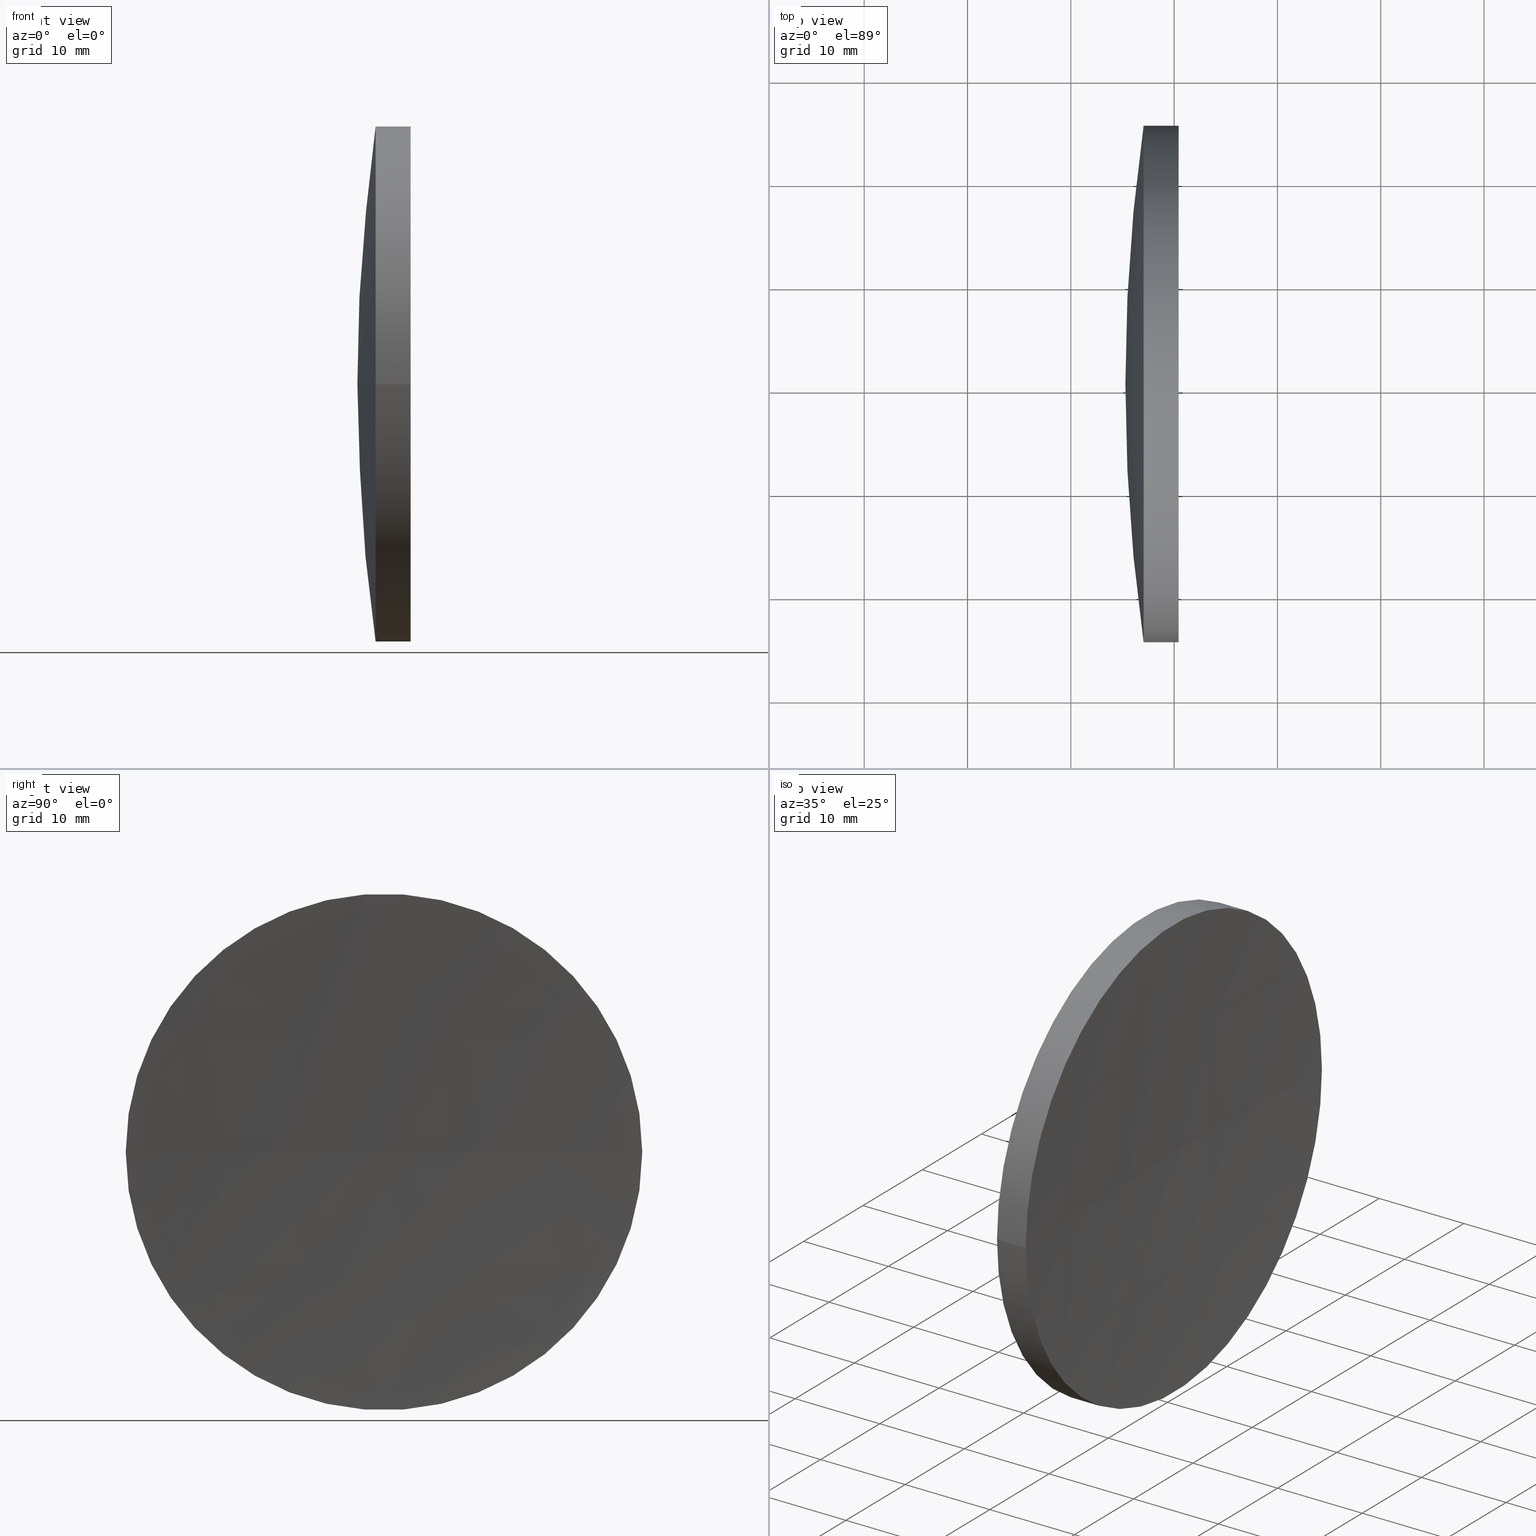
[diagram: canonical four-view strip — front | top / right | iso, engineering-drawing reading convention]
A machine part, canonical four-view strip (front | top / right | iso — engineering-drawing reading convention). The complete STEP part file that produces these views, byte-faithful:
ISO-10303-21;
HEADER;
FILE_DESCRIPTION (( 'STEP AP214' ),
    '1' );
FILE_NAME ('150023.STEP',
    '2019-07-05T02:02:17',
    ( '' ),
    ( '' ),
    'SwSTEP 2.0',
    'SolidWorks 2016',
    '' );
FILE_SCHEMA (( 'AUTOMOTIVE_DESIGN' ));
ENDSEC;

DATA;
#1 = SPHERICAL_SURFACE ( 'NONE', #82, 178.0000000000000300 ) ;
#2 = CARTESIAN_POINT ( 'NONE',  ( 727.7821311214902400, 130.4336809418802000, 0.0000000000000000000 ) ) ;
#3 = DIRECTION ( 'NONE',  ( 1.110223024625155600E-015, -1.000000000000000000, 0.0000000000000000000 ) ) ;
#4 = AXIS2_PLACEMENT_3D ( 'NONE', #124, #125, #21 ) ;
#5 = CARTESIAN_POINT ( 'NONE',  ( 727.7821311214902400, 130.4336809418802000, 0.0000000000000000000 ) ) ;
#6 =( NAMED_UNIT ( * ) PLANE_ANGLE_UNIT ( ) SI_UNIT ( $, .RADIAN. ) );
#7 = CIRCLE ( 'NONE', #33, 478.0000000000001100 ) ;
#8 = DIRECTION ( 'NONE',  ( 0.0000000000000000000, 0.0000000000000000000, 1.000000000000000000 ) ) ;
#9 = DIRECTION ( 'NONE',  ( 1.000000000000000000, 0.0000000000000000000, 0.0000000000000000000 ) ) ;
#10 = CIRCLE ( 'NONE', #72, 25.00000000000006400 ) ;
#11 =( GEOMETRIC_REPRESENTATION_CONTEXT ( 3 ) GLOBAL_UNCERTAINTY_ASSIGNED_CONTEXT ( ( #80 ) ) GLOBAL_UNIT_ASSIGNED_CONTEXT ( ( #134, #6, #22 ) ) REPRESENTATION_CONTEXT ( 'NONE', 'WORKASPACE' ) );
#12 = PRODUCT_RELATED_PRODUCT_CATEGORY ( 'part', '', ( #145 ) ) ;
#13 = EDGE_CURVE ( 'NONE', #27, #177, #44, .T. ) ;
#14 = PRESENTATION_LAYER_ASSIGNMENT (  '', '', ( #147 ) ) ;
#15 = EDGE_CURVE ( 'NONE', #16, #27, #81, .T. ) ;
#16 = VERTEX_POINT ( 'NONE', #102 ) ;
#17 = ADVANCED_BREP_SHAPE_REPRESENTATION ( '150023', ( #68, #168 ), #11 ) ;
#18 = EDGE_CURVE ( 'NONE', #79, #170, #30, .T. ) ;
#19 = DIRECTION ( 'NONE',  ( 1.000000000000000000, 0.0000000000000000000, 0.0000000000000000000 ) ) ;
#20 = EDGE_LOOP ( 'NONE', ( #69, #190, #25, #24 ) ) ;
#21 = DIRECTION ( 'NONE',  ( 0.0000000000000000000, 1.000000000000000000, 1.224646799147353000E-016 ) ) ;
#22 =( NAMED_UNIT ( * ) SI_UNIT ( $, .STERADIAN. ) SOLID_ANGLE_UNIT ( ) );
#23 = CARTESIAN_POINT ( 'NONE',  ( 423.2821311214902400, 130.4336809418806500, 0.0000000000000000000 ) ) ;
#24 = ORIENTED_EDGE ( 'NONE', *, *, #89, .F. ) ;
#25 = ORIENTED_EDGE ( 'NONE', *, *, #76, .T. ) ;
#26 =( GEOMETRIC_REPRESENTATION_CONTEXT ( 3 ) GLOBAL_UNCERTAINTY_ASSIGNED_CONTEXT ( ( #38 ) ) GLOBAL_UNIT_ASSIGNED_CONTEXT ( ( #36, #74, #91 ) ) REPRESENTATION_CONTEXT ( 'NONE', 'WORKASPACE' ) );
#27 = VERTEX_POINT ( 'NONE', #28 ) ;
#28 = CARTESIAN_POINT ( 'NONE',  ( 247.0464934087960100, 155.4336809418806200, 3.061616997868381100E-015 ) ) ;
#29 = DIRECTION ( 'NONE',  ( 1.110223024625158500E-015, -1.000000000000000000, 0.0000000000000000000 ) ) ;
#30 = CIRCLE ( 'NONE', #64, 478.0000000000000000 ) ;
#31 =( GEOMETRIC_REPRESENTATION_CONTEXT ( 3 ) GLOBAL_UNCERTAINTY_ASSIGNED_CONTEXT ( ( #192 ) ) GLOBAL_UNIT_ASSIGNED_CONTEXT ( ( #52, #152, #63 ) ) REPRESENTATION_CONTEXT ( 'NONE', 'WORKASPACE' ) );
#32 = CARTESIAN_POINT ( 'NONE',  ( 250.4363445055402600, 130.4336809418806500, 0.0000000000000000000 ) ) ;
#33 = AXIS2_PLACEMENT_3D ( 'NONE', #5, #93, #87 ) ;
#34 = CARTESIAN_POINT ( 'NONE',  ( 247.0464934087960400, 130.4336809418806500, 0.0000000000000000000 ) ) ;
#35 = FILL_AREA_STYLE ('',( #161 ) ) ;
#36 =( LENGTH_UNIT ( ) NAMED_UNIT ( * ) SI_UNIT ( .MILLI., .METRE. ) );
#37 = PRESENTATION_STYLE_ASSIGNMENT (( #94 ) ) ;
#38 = UNCERTAINTY_MEASURE_WITH_UNIT (LENGTH_MEASURE( 1.000000000000000100E-005 ), #36, 'distance_accuracy_value', 'NONE');
#39 = ORIENTED_EDGE ( 'NONE', *, *, #176, .T. ) ;
#40 = FACE_OUTER_BOUND ( 'NONE', #99, .T. ) ;
#41 = AXIS2_PLACEMENT_3D ( 'NONE', #181, #148, #46 ) ;
#42 = SPHERICAL_SURFACE ( 'NONE', #41, 478.0000000000001100 ) ;
#43 = EDGE_CURVE ( 'NONE', #79, #135, #10, .T. ) ;
#44 = CIRCLE ( 'NONE', #84, 178.0000000000000000 ) ;
#45 = EDGE_CURVE ( 'NONE', #135, #79, #116, .T. ) ;
#46 = DIRECTION ( 'NONE',  ( -6.967926932793868200E-016, 1.000000000000000000, 0.0000000000000000000 ) ) ;
#47 = CARTESIAN_POINT ( 'NONE',  ( 250.4363445055402100, 155.4336809418801400, 0.0000000000000000000 ) ) ;
#48 = SURFACE_STYLE_USAGE ( .BOTH. , #120 ) ;
#49 = DIRECTION ( 'NONE',  ( -1.000000000000000000, -6.937607244762875000E-016, -0.0000000000000000000 ) ) ;
#50 = ADVANCED_FACE ( 'NONE', ( #71 ), #1, .T. ) ;
#51 = LINE ( 'NONE', #61, #98 ) ;
#52 =( LENGTH_UNIT ( ) NAMED_UNIT ( * ) SI_UNIT ( .MILLI., .METRE. ) );
#53 = ORIENTED_EDGE ( 'NONE', *, *, #191, .T. ) ;
#54 = AXIS2_PLACEMENT_3D ( 'NONE', #101, #143, #29 ) ;
#55 = ORIENTED_EDGE ( 'NONE', *, *, #66, .T. ) ;
#56 = DIRECTION ( 'NONE',  ( -0.0000000000000000000, 0.0000000000000000000, 1.000000000000000000 ) ) ;
#57 = DIRECTION ( 'NONE',  ( 1.110223024625158500E-015, -1.000000000000000000, 0.0000000000000000000 ) ) ;
#58 = DIRECTION ( 'NONE',  ( 0.0000000000000000000, 0.0000000000000000000, -1.000000000000000000 ) ) ;
#59 = ORIENTED_EDGE ( 'NONE', *, *, #45, .F. ) ;
#60 = DIRECTION ( 'NONE',  ( -1.000000000000000000, -6.937607244762875000E-016, -0.0000000000000000000 ) ) ;
#61 = CARTESIAN_POINT ( 'NONE',  ( 231.8889825959263100, 155.4336809418806800, 3.061616997868385800E-015 ) ) ;
#62 = EDGE_LOOP ( 'NONE', ( #184, #67, #141 ) ) ;
#63 =( NAMED_UNIT ( * ) SI_UNIT ( $, .STERADIAN. ) SOLID_ANGLE_UNIT ( ) );
#64 = AXIS2_PLACEMENT_3D ( 'NONE', #2, #106, #118 ) ;
#65 = PRODUCT_DEFINITION_FORMATION_WITH_SPECIFIED_SOURCE ( '�κ�', '', #145, .NOT_KNOWN. ) ;
#66 = EDGE_CURVE ( 'NONE', #16, #177, #85, .T. ) ;
#67 = ORIENTED_EDGE ( 'NONE', *, *, #15, .T. ) ;
#68 = MANIFOLD_SOLID_BREP ( '��ת1', #146 ) ;
#69 = ORIENTED_EDGE ( 'NONE', *, *, #191, .F. ) ;
#70 = COLOUR_RGB ( '',1.000000000000000000, 1.000000000000000000, 1.000000000000000000 ) ;
#71 = FACE_OUTER_BOUND ( 'NONE', #115, .T. ) ;
#72 = AXIS2_PLACEMENT_3D ( 'NONE', #32, #133, #131 ) ;
#73 = CARTESIAN_POINT ( 'NONE',  ( 250.4363445055402100, 105.4336809418803700, -3.061616997868324700E-015 ) ) ;
#74 =( NAMED_UNIT ( * ) PLANE_ANGLE_UNIT ( ) SI_UNIT ( $, .RADIAN. ) );
#75 = DIRECTION ( 'NONE',  ( -6.967926932793868200E-016, 1.000000000000000000, 0.0000000000000000000 ) ) ;
#76 = EDGE_CURVE ( 'NONE', #135, #16, #111, .T. ) ;
#77 = DIRECTION ( 'NONE',  ( 0.0000000000000000000, -1.000000000000000000, 0.0000000000000000000 ) ) ;
#78 = APPLICATION_CONTEXT ( 'automotive_design' ) ;
#79 = VERTEX_POINT ( 'NONE', #47 ) ;
#80 = UNCERTAINTY_MEASURE_WITH_UNIT (LENGTH_MEASURE( 1.000000000000000100E-005 ), #134, 'distance_accuracy_value', 'NONE');
#81 = CIRCLE ( 'NONE', #54, 24.99999999999995400 ) ;
#82 = AXIS2_PLACEMENT_3D ( 'NONE', #100, #138, #183 ) ;
#83 = AXIS2_PLACEMENT_3D ( 'NONE', #158, #110, #3 ) ;
#84 = AXIS2_PLACEMENT_3D ( 'NONE', #173, #56, #19 ) ;
#85 = CIRCLE ( 'NONE', #4, 178.0000000000000300 ) ;
#86 = ADVANCED_FACE ( 'NONE', ( #104 ), #155, .F. ) ;
#87 = DIRECTION ( 'NONE',  ( 0.0000000000000000000, 1.000000000000000000, 1.224646799147353000E-016 ) ) ;
#88 = CIRCLE ( 'NONE', #159, 24.99999999999995400 ) ;
#89 = EDGE_CURVE ( 'NONE', #27, #16, #88, .T. ) ;
#90 = CARTESIAN_POINT ( 'NONE',  ( 0.0000000000000000000, 0.0000000000000000000, 0.0000000000000000000 ) ) ;
#91 =( NAMED_UNIT ( * ) SI_UNIT ( $, .STERADIAN. ) SOLID_ANGLE_UNIT ( ) );
#92 = ADVANCED_FACE ( 'NONE', ( #149 ), #182, .T. ) ;
#93 = DIRECTION ( 'NONE',  ( -8.496118506040342700E-032, 1.224646799147353200E-016, -1.000000000000000000 ) ) ;
#94 = SURFACE_STYLE_USAGE ( .BOTH. , #126 ) ;
#95 = ORIENTED_EDGE ( 'NONE', *, *, #89, .T. ) ;
#96 = APPLICATION_PROTOCOL_DEFINITION ( 'draft international standard', 'automotive_design', 1998, #78 ) ;
#97 = STYLED_ITEM ( 'NONE', ( #169 ), #68 ) ;
#98 = VECTOR ( 'NONE', #136, 1000.000000000000000 ) ;
#99 = EDGE_LOOP ( 'NONE', ( #130, #172, #112 ) ) ;
#100 = CARTESIAN_POINT ( 'NONE',  ( 423.2821311214902400, 130.4336809418806500, 0.0000000000000000000 ) ) ;
#101 = CARTESIAN_POINT ( 'NONE',  ( 247.0464934087960400, 130.4336809418806500, 0.0000000000000000000 ) ) ;
#102 = CARTESIAN_POINT ( 'NONE',  ( 247.0464934087960700, 105.4336809418807000, 0.0000000000000000000 ) ) ;
#103 = MECHANICAL_DESIGN_GEOMETRIC_PRESENTATION_REPRESENTATION (  '', ( #97 ), #26 ) ;
#104 = FACE_OUTER_BOUND ( 'NONE', #156, .T. ) ;
#105 = ORIENTED_EDGE ( 'NONE', *, *, #45, .T. ) ;
#106 = DIRECTION ( 'NONE',  ( 0.0000000000000000000, -0.0000000000000000000, 1.000000000000000000 ) ) ;
#107 = AXIS2_PLACEMENT_3D ( 'NONE', #137, #163, #77 ) ;
#108 = CARTESIAN_POINT ( 'NONE',  ( 245.2821311214901800, 130.4336809418805400, 0.0000000000000000000 ) ) ;
#109 = CARTESIAN_POINT ( 'NONE',  ( 231.8889825959263400, 130.4336809418806500, 0.0000000000000000000 ) ) ;
#110 = DIRECTION ( 'NONE',  ( -1.000000000000000000, -6.937607244762875000E-016, -0.0000000000000000000 ) ) ;
#111 = LINE ( 'NONE', #160, #122 ) ;
#112 = ORIENTED_EDGE ( 'NONE', *, *, #18, .T. ) ;
#113 = DIRECTION ( 'NONE',  ( 1.110223024625155600E-015, -1.000000000000000000, 0.0000000000000000000 ) ) ;
#114 = ORIENTED_EDGE ( 'NONE', *, *, #18, .F. ) ;
#115 = EDGE_LOOP ( 'NONE', ( #95, #55, #128 ) ) ;
#116 = CIRCLE ( 'NONE', #107, 25.00000000000006400 ) ;
#117 = PRESENTATION_LAYER_ASSIGNMENT (  '', '', ( #97 ) ) ;
#118 = DIRECTION ( 'NONE',  ( 1.000000000000000000, 0.0000000000000000000, 0.0000000000000000000 ) ) ;
#119 = DIRECTION ( 'NONE',  ( -1.000000000000000000, -6.937607244762875000E-016, -0.0000000000000000000 ) ) ;
#120 = SURFACE_SIDE_STYLE ('',( #162 ) ) ;
#121 = AXIS2_PLACEMENT_3D ( 'NONE', #109, #60, #113 ) ;
#122 = VECTOR ( 'NONE', #119, 1000.000000000000000 ) ;
#123 = CARTESIAN_POINT ( 'NONE',  ( 249.7821311214901800, 130.4336809418799100, 0.0000000000000000000 ) ) ;
#124 = CARTESIAN_POINT ( 'NONE',  ( 423.2821311214902400, 130.4336809418806500, 0.0000000000000000000 ) ) ;
#125 = DIRECTION ( 'NONE',  ( -8.496118506040342700E-032, 1.224646799147353200E-016, -1.000000000000000000 ) ) ;
#126 = SURFACE_SIDE_STYLE ('',( #144 ) ) ;
#127 = CYLINDRICAL_SURFACE ( 'NONE', #83, 25.00000000000002100 ) ;
#128 = ORIENTED_EDGE ( 'NONE', *, *, #13, .F. ) ;
#129 = FACE_OUTER_BOUND ( 'NONE', #20, .T. ) ;
#130 = ORIENTED_EDGE ( 'NONE', *, *, #176, .F. ) ;
#131 = DIRECTION ( 'NONE',  ( 0.0000000000000000000, -1.000000000000000000, 0.0000000000000000000 ) ) ;
#132 = PRODUCT_DEFINITION ( 'δ֪', '', #65, #167 ) ;
#133 = DIRECTION ( 'NONE',  ( -1.000000000000000000, -6.937607244762875000E-016, -0.0000000000000000000 ) ) ;
#134 =( LENGTH_UNIT ( ) NAMED_UNIT ( * ) SI_UNIT ( .MILLI., .METRE. ) );
#135 = VERTEX_POINT ( 'NONE', #73 ) ;
#136 = DIRECTION ( 'NONE',  ( -1.000000000000000000, -6.937607244762875000E-016, -0.0000000000000000000 ) ) ;
#137 = CARTESIAN_POINT ( 'NONE',  ( 250.4363445055402600, 130.4336809418806500, 0.0000000000000000000 ) ) ;
#138 = DIRECTION ( 'NONE',  ( -0.0000000000000000000, 0.0000000000000000000, -1.000000000000000000 ) ) ;
#139 = SHAPE_DEFINITION_REPRESENTATION ( #178, #17 ) ;
#140 = PRODUCT_CONTEXT ( 'NONE', #166, 'mechanical' ) ;
#141 = ORIENTED_EDGE ( 'NONE', *, *, #13, .T. ) ;
#142 = ORIENTED_EDGE ( 'NONE', *, *, #15, .F. ) ;
#143 = DIRECTION ( 'NONE',  ( -1.000000000000000000, -6.937607244762875000E-016, -0.0000000000000000000 ) ) ;
#144 = SURFACE_STYLE_FILL_AREA ( #187 ) ;
#145 = PRODUCT ( '150023', '150023', '', ( #140 ) ) ;
#146 = CLOSED_SHELL ( 'NONE', ( #50, #185, #86, #151, #157, #92 ) ) ;
#147 = STYLED_ITEM ( 'NONE', ( #37 ), #17 ) ;
#148 = DIRECTION ( 'NONE',  ( 0.0000000000000000000, 0.0000000000000000000, -1.000000000000000000 ) ) ;
#149 = FACE_OUTER_BOUND ( 'NONE', #62, .T. ) ;
#150 = CARTESIAN_POINT ( 'NONE',  ( 727.7821311214902400, 130.4336809418802000, 0.0000000000000000000 ) ) ;
#151 = ADVANCED_FACE ( 'NONE', ( #40 ), #42, .F. ) ;
#152 =( NAMED_UNIT ( * ) PLANE_ANGLE_UNIT ( ) SI_UNIT ( $, .RADIAN. ) );
#153 = EDGE_LOOP ( 'NONE', ( #105, #53, #142, #188 ) ) ;
#154 = CYLINDRICAL_SURFACE ( 'NONE', #121, 25.00000000000002100 ) ;
#155 = SPHERICAL_SURFACE ( 'NONE', #171, 478.0000000000001100 ) ;
#156 = EDGE_LOOP ( 'NONE', ( #59, #39, #114 ) ) ;
#157 = ADVANCED_FACE ( 'NONE', ( #129 ), #154, .T. ) ;
#158 = CARTESIAN_POINT ( 'NONE',  ( 231.8889825959263400, 130.4336809418806500, 0.0000000000000000000 ) ) ;
#159 = AXIS2_PLACEMENT_3D ( 'NONE', #34, #49, #57 ) ;
#160 = CARTESIAN_POINT ( 'NONE',  ( 231.8889825959263600, 105.4336809418806200, 0.0000000000000000000 ) ) ;
#161 = FILL_AREA_STYLE_COLOUR ( '', #165 ) ;
#162 = SURFACE_STYLE_FILL_AREA ( #35 ) ;
#163 = DIRECTION ( 'NONE',  ( -1.000000000000000000, -6.937607244762875000E-016, -0.0000000000000000000 ) ) ;
#164 = APPLICATION_PROTOCOL_DEFINITION ( 'draft international standard', 'automotive_design', 1998, #166 ) ;
#165 = COLOUR_RGB ( '',1.000000000000000000, 1.000000000000000000, 1.000000000000000000 ) ;
#166 = APPLICATION_CONTEXT ( 'automotive_design' ) ;
#167 = PRODUCT_DEFINITION_CONTEXT ( 'detailed design', #78, 'design' ) ;
#168 = AXIS2_PLACEMENT_3D ( 'NONE', #90, #8, #9 ) ;
#169 = PRESENTATION_STYLE_ASSIGNMENT (( #48 ) ) ;
#170 = VERTEX_POINT ( 'NONE', #123 ) ;
#171 = AXIS2_PLACEMENT_3D ( 'NONE', #150, #58, #75 ) ;
#172 = ORIENTED_EDGE ( 'NONE', *, *, #43, .F. ) ;
#173 = CARTESIAN_POINT ( 'NONE',  ( 423.2821311214902400, 130.4336809418806500, 0.0000000000000000000 ) ) ;
#174 = MECHANICAL_DESIGN_GEOMETRIC_PRESENTATION_REPRESENTATION (  '', ( #147 ), #31 ) ;
#175 = FACE_OUTER_BOUND ( 'NONE', #153, .T. ) ;
#176 = EDGE_CURVE ( 'NONE', #135, #170, #7, .T. ) ;
#177 = VERTEX_POINT ( 'NONE', #108 ) ;
#178 = PRODUCT_DEFINITION_SHAPE ( 'NONE', 'NONE',  #132 ) ;
#179 = DIRECTION ( 'NONE',  ( -6.237208003512114900E-016, 1.000000000000000000, 0.0000000000000000000 ) ) ;
#180 = DIRECTION ( 'NONE',  ( -0.0000000000000000000, 0.0000000000000000000, -1.000000000000000000 ) ) ;
#181 = CARTESIAN_POINT ( 'NONE',  ( 727.7821311214902400, 130.4336809418802000, 0.0000000000000000000 ) ) ;
#182 = SPHERICAL_SURFACE ( 'NONE', #189, 178.0000000000000300 ) ;
#183 = DIRECTION ( 'NONE',  ( -6.237208003512114900E-016, 1.000000000000000000, 0.0000000000000000000 ) ) ;
#184 = ORIENTED_EDGE ( 'NONE', *, *, #66, .F. ) ;
#185 = ADVANCED_FACE ( 'NONE', ( #175 ), #127, .T. ) ;
#186 = FILL_AREA_STYLE_COLOUR ( '', #70 ) ;
#187 = FILL_AREA_STYLE ('',( #186 ) ) ;
#188 = ORIENTED_EDGE ( 'NONE', *, *, #76, .F. ) ;
#189 = AXIS2_PLACEMENT_3D ( 'NONE', #23, #180, #179 ) ;
#190 = ORIENTED_EDGE ( 'NONE', *, *, #43, .T. ) ;
#191 = EDGE_CURVE ( 'NONE', #79, #27, #51, .T. ) ;
#192 = UNCERTAINTY_MEASURE_WITH_UNIT (LENGTH_MEASURE( 1.000000000000000100E-005 ), #52, 'distance_accuracy_value', 'NONE');
ENDSEC;
END-ISO-10303-21;
